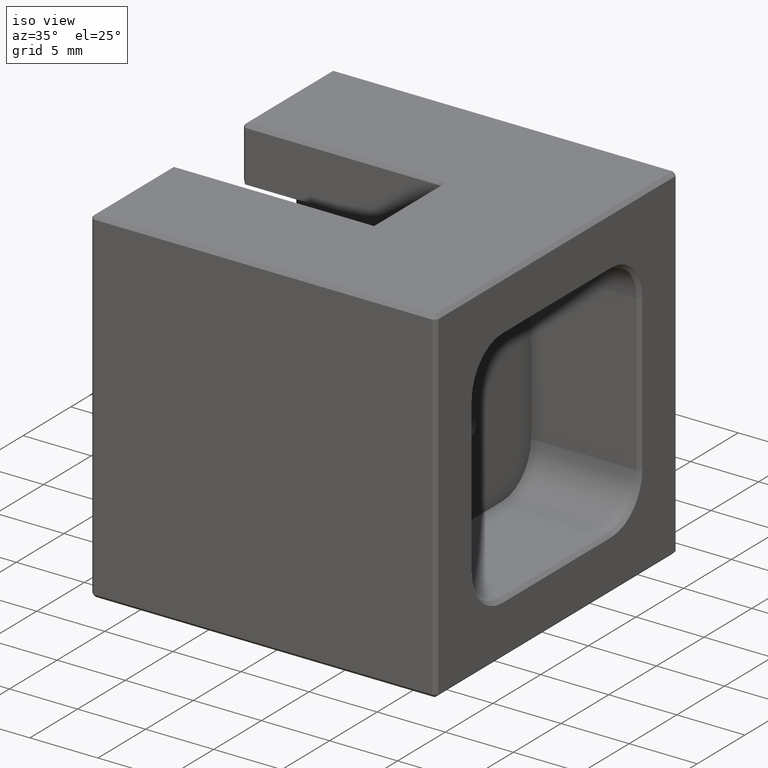
[diagram: clean part render]
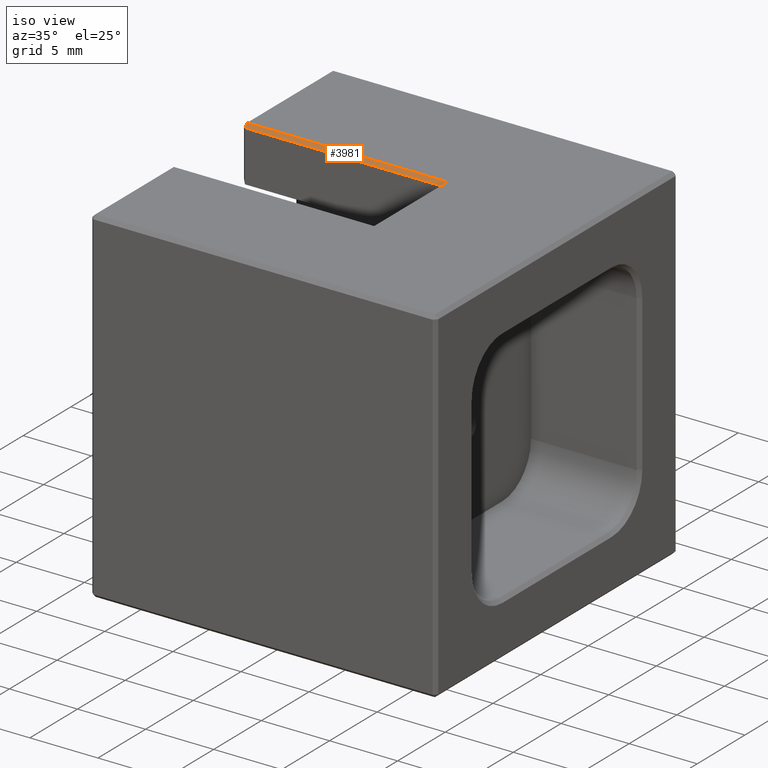
[diagram: same view with one face highlighted and labeled with its STEP entity id]
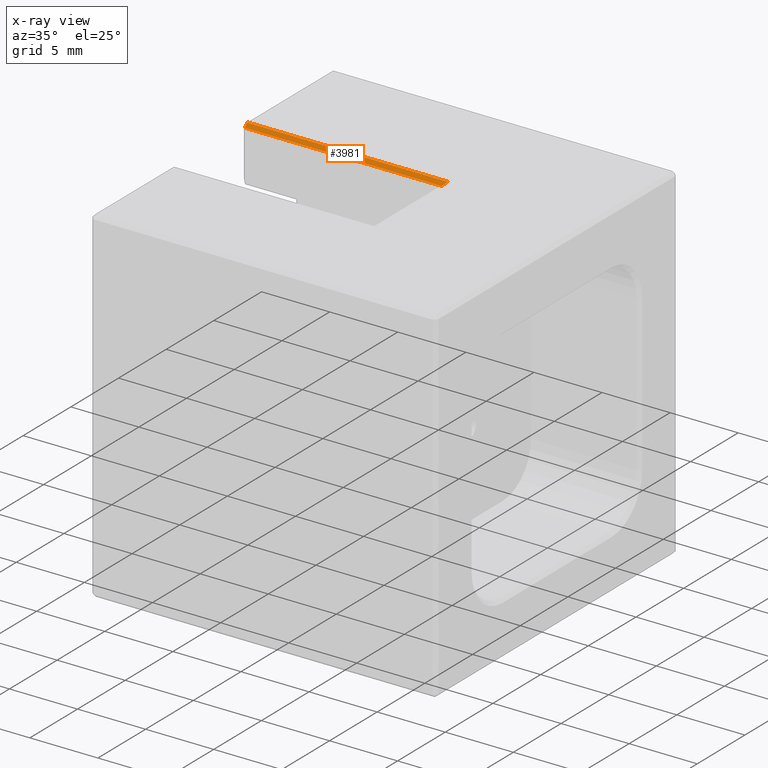
[diagram: x-ray of the same camera — body ghosted, the highlighted face saturated]
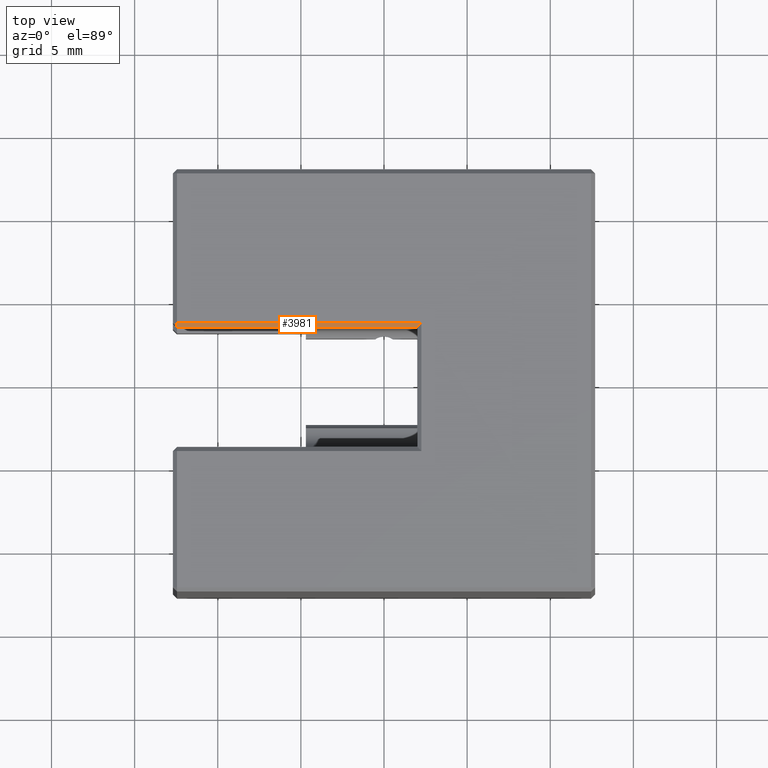
[diagram: same view with one face highlighted and labeled with its STEP entity id]
A machine part, iso view. The second image highlights one B-rep face of the part: STEP entity #3981.
The next image is the same camera in x-ray: the body ghosted, the highlighted face saturated — about 0% of this face is hidden behind the body in this view.
A second angle (top view) of the same face is appended — the face is thin or edge-on in the first view.
In plain terms, the highlighted planar face has unit normal (-0, 0.7071, -0.7071).
Its self-contained STEP definition (entity closure, byte-faithful):
#101 = ORIENTED_EDGE ( 'NONE', *, *, #1548, .F. ) ;
#412 = CARTESIAN_POINT ( 'NONE',  ( -12.45000000000000995, 3.449999999999993072, 12.70000000000000462 ) ) ;
#942 = CARTESIAN_POINT ( 'NONE',  ( 15.39689885204967545, 3.199999999999999734, 12.45000000000000817 ) ) ;
#1084 = CARTESIAN_POINT ( 'NONE',  ( 12.69999999999999574, 3.449999999999993072, 12.69999999999999751 ) ) ;
#1124 = EDGE_CURVE ( 'NONE', #3783, #4041, #5737, .T. ) ;
#1485 = VERTEX_POINT ( 'NONE', #3211 ) ;
#1548 = EDGE_CURVE ( 'NONE', #3783, #4378, #2224, .T. ) ;
#1609 = ORIENTED_EDGE ( 'NONE', *, *, #5359, .F. ) ;
#2224 = LINE ( 'NONE', #1084, #3631 ) ;
#2413 = CARTESIAN_POINT ( 'NONE',  ( -12.45000000000001172, 3.324999999999996181, 12.57500000000000995 ) ) ;
#2705 = CARTESIAN_POINT ( 'NONE',  ( 6.465632950683213309, 7.665632950683257896, 16.91563295068319306 ) ) ;
#2891 = DIRECTION ( 'NONE',  ( -1.237656474256255315E-14, -0.7071067811865535679, -0.7071067811865415775 ) ) ;
#3211 = CARTESIAN_POINT ( 'NONE',  ( 2.000000000000000000, 3.199999999999999734, 12.45000000000001172 ) ) ;
#3595 = EDGE_CURVE ( 'NONE', #1485, #4041, #4452, .T. ) ;
#3631 = VECTOR ( 'NONE', #5413, 1000.000000000000000 ) ;
#3706 = DIRECTION ( 'NONE',  ( -0.5773502691896249539, -0.5773502691896310601, -0.5773502691896211791 ) ) ;
#3750 = VECTOR ( 'NONE', #5902, 1000.000000000000000 ) ;
#3783 = VERTEX_POINT ( 'NONE', #412 ) ;
#3981 = ADVANCED_FACE ( 'NONE', ( #6182 ), #4846, .F. ) ;
#3987 = EDGE_LOOP ( 'NONE', ( #6205, #6179, #1609, #101 ) ) ;
#4041 = VERTEX_POINT ( 'NONE', #5817 ) ;
#4191 = VECTOR ( 'NONE', #2891, 999.9999999999998863 ) ;
#4361 = CARTESIAN_POINT ( 'NONE',  ( 15.39689885204967545, 3.199999999999999734, 12.45000000000000817 ) ) ;
#4378 = VERTEX_POINT ( 'NONE', #6140 ) ;
#4452 = LINE ( 'NONE', #942, #3750 ) ;
#4846 = PLANE ( 'NONE',  #5808 ) ;
#4911 = VECTOR ( 'NONE', #3706, 1000.000000000000114 ) ;
#5210 = DIRECTION ( 'NONE',  ( -1.000000000000000000, -4.428972754588352193E-32, 2.731847993664263218E-16 ) ) ;
#5359 = EDGE_CURVE ( 'NONE', #4378, #1485, #6067, .T. ) ;
#5413 = DIRECTION ( 'NONE',  ( 1.000000000000000000, 4.428972754588352193E-32, -2.731847993664263218E-16 ) ) ;
#5737 = LINE ( 'NONE', #2413, #4191 ) ;
#5808 = AXIS2_PLACEMENT_3D ( 'NONE', #4361, #6307, #5210 ) ;
#5817 = CARTESIAN_POINT ( 'NONE',  ( -12.45000000000001528, 3.199999999999999734, 12.45000000000001528 ) ) ;
#5902 = DIRECTION ( 'NONE',  ( -1.000000000000000000, -4.428972754588352193E-32, 2.731847993664263218E-16 ) ) ;
#6067 = LINE ( 'NONE', #2705, #4911 ) ;
#6140 = CARTESIAN_POINT ( 'NONE',  ( 2.249999999999990230, 3.449999999999993072, 12.70000000000000107 ) ) ;
#6179 = ORIENTED_EDGE ( 'NONE', *, *, #3595, .F. ) ;
#6182 = FACE_OUTER_BOUND ( 'NONE', #3987, .T. ) ;
#6205 = ORIENTED_EDGE ( 'NONE', *, *, #1124, .T. ) ;
#6307 = DIRECTION ( 'NONE',  ( -1.931708241490881742E-16, 0.7071067811865414665, -0.7071067811865535679 ) ) ;